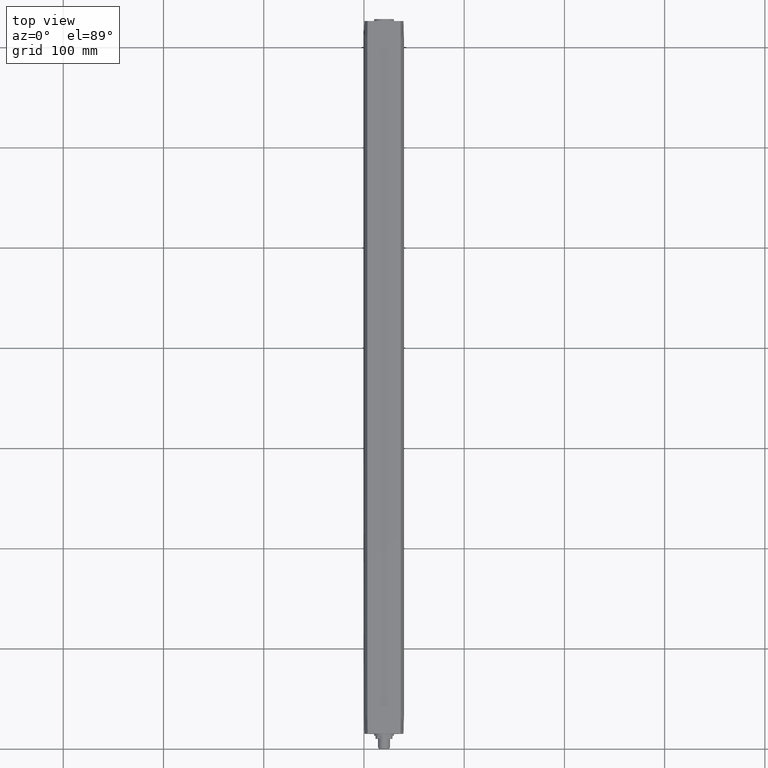
[diagram: clean part render]
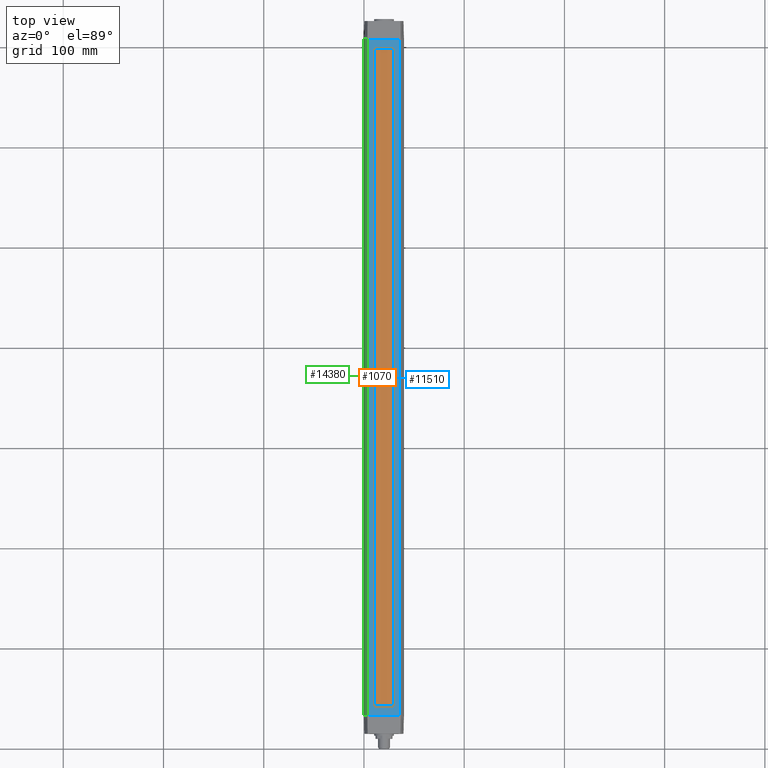
[diagram: same view with three faces highlighted in distinct colors, each labeled with its STEP entity id]
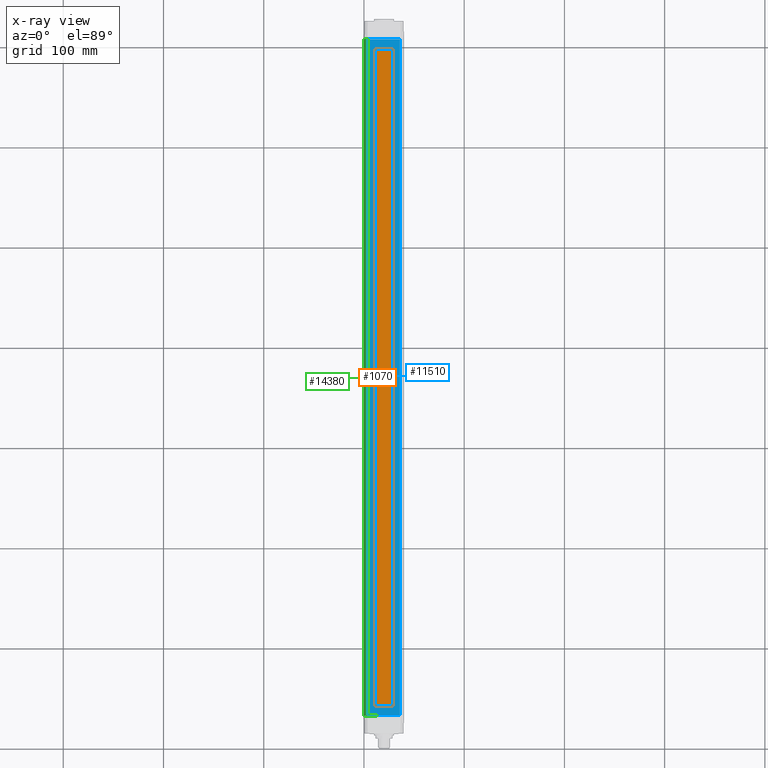
[diagram: x-ray of the same camera — body ghosted, the three highlighted faces saturated]
A machine part, top view with three faces highlighted in distinct colors.
The next image is the same camera in x-ray (body ghosted, the three faces saturated) — at least one of them is partly hidden behind the body in this view.
Their STEP definitions:

[orange] entity #1070 — the highlighted planar face has unit normal (-0, 0, 1).
#680=CARTESIAN_POINT('',(-9.97500378000003,11.,68.77500378));
#690=DIRECTION('',(-0.,1.,0.));
#700=DIRECTION('',(1.,0.,0.));
#710=AXIS2_PLACEMENT_3D('',#680,#690,#700);
#720=PLANE('',#710);
#730=CARTESIAN_POINT('',(4.9737991503207E-14,11.0000000000001,590.5));
#740=DIRECTION('',(1.,0.,0.));
#750=VECTOR('',#740,1.);
#760=LINE('',#730,#750);
#770=CARTESIAN_POINT('',(-9.49999999999994,11.,590.5));
#780=VERTEX_POINT('',#770);
#790=CARTESIAN_POINT('',(9.50000000000008,11.,590.5));
#800=VERTEX_POINT('',#790);
#810=EDGE_CURVE('',#780,#800,#760,.T.);
#820=ORIENTED_EDGE('',*,*,#810,.T.);
#830=CARTESIAN_POINT('',(-9.49999999999999,11.,0.));
#840=DIRECTION('',(0.,0.,1.));
#850=VECTOR('',#840,1.);
#860=LINE('',#830,#850);
#870=CARTESIAN_POINT('',(-9.49999999999999,11.,-65.5));
#880=VERTEX_POINT('',#870);
#890=EDGE_CURVE('',#880,#780,#860,.T.);
#900=ORIENTED_EDGE('',*,*,#890,.T.);
#910=CARTESIAN_POINT('',(0.,11.,-65.5));
#920=DIRECTION('',(-1.,0.,0.));
#930=VECTOR('',#920,1.);
#940=LINE('',#910,#930);
#950=CARTESIAN_POINT('',(9.50000000000003,11.,-65.5));
#960=VERTEX_POINT('',#950);
#970=EDGE_CURVE('',#960,#880,#940,.T.);
#980=ORIENTED_EDGE('',*,*,#970,.T.);
#990=CARTESIAN_POINT('',(9.50000000000003,11.,0.));
#1000=DIRECTION('',(0.,0.,-1.));
#1010=VECTOR('',#1000,1.);
#1020=LINE('',#990,#1010);
#1030=EDGE_CURVE('',#800,#960,#1020,.T.);
#1040=ORIENTED_EDGE('',*,*,#1030,.T.);
#1050=EDGE_LOOP('',(#1040,#980,#900,#820));
#1060=FACE_OUTER_BOUND('',#1050,.T.);
#1070=ADVANCED_FACE('',(#1060),#720,.T.);

[blue] entity #11510 — the highlighted planar face has unit normal (-0, 0, 1).
#1580=CARTESIAN_POINT('',(-9.49999999999994,11.1,590.5));
#1590=VERTEX_POINT('',#1580);
#1620=CARTESIAN_POINT('',(-9.49999999999999,11.1,0.));
#1630=DIRECTION('',(0.,0.,-1.));
#1640=VECTOR('',#1630,1.);
#1650=LINE('',#1620,#1640);
#1660=CARTESIAN_POINT('',(-9.49999999999999,11.1,-65.5));
#1670=VERTEX_POINT('',#1660);
#1680=EDGE_CURVE('',#1590,#1670,#1650,.T.);
#8390=CARTESIAN_POINT('',(0.,11.1,-74.6));
#8400=DIRECTION('',(-1.,0.,0.));
#8410=VECTOR('',#8400,1.);
#8420=LINE('',#8390,#8410);
#8430=CARTESIAN_POINT('',(15.8,11.1,-74.6));
#8440=VERTEX_POINT('',#8430);
#8450=CARTESIAN_POINT('',(-15.8,11.1,-74.6));
#8460=VERTEX_POINT('',#8450);
#8470=EDGE_CURVE('',#8440,#8460,#8420,.T.);
#10150=CARTESIAN_POINT('',(0.,11.1,-65.5));
#10160=DIRECTION('',(1.,0.,0.));
#10170=VECTOR('',#10160,1.);
#10180=LINE('',#10150,#10170);
#10190=CARTESIAN_POINT('',(9.50000000000003,11.1,-65.5));
#10200=VERTEX_POINT('',#10190);
#10210=EDGE_CURVE('',#1670,#10200,#10180,.T.);
#10860=CARTESIAN_POINT('',(9.50000000000003,11.1,0.));
#10870=DIRECTION('',(0.,0.,1.));
#10880=VECTOR('',#10870,1.);
#10890=LINE('',#10860,#10880);
#10900=CARTESIAN_POINT('',(9.50000000000008,11.1,590.5));
#10910=VERTEX_POINT('',#10900);
#10920=EDGE_CURVE('',#10200,#10910,#10890,.T.);
#11100=CARTESIAN_POINT('',(-16.59000378,11.1,78.33000378));
#11110=DIRECTION('',(-0.,1.,0.));
#11120=DIRECTION('',(1.,0.,0.));
#11130=AXIS2_PLACEMENT_3D('',#11100,#11110,#11120);
#11140=PLANE('',#11130);
#11150=ORIENTED_EDGE('',*,*,#1680,.T.);
#11160=CARTESIAN_POINT('',(4.9737991503207E-14,11.1000000000001,590.5));
#11170=DIRECTION('',(-1.,0.,0.));
#11180=VECTOR('',#11170,1.);
#11190=LINE('',#11160,#11180);
#11200=EDGE_CURVE('',#10910,#1590,#11190,.T.);
#11210=ORIENTED_EDGE('',*,*,#11200,.T.);
#11220=ORIENTED_EDGE('',*,*,#10920,.T.);
#11230=ORIENTED_EDGE('',*,*,#10210,.T.);
#11240=EDGE_LOOP('',(#11230,#11220,#11210,#11150));
#11250=FACE_BOUND('',#11240,.T.);
#11260=CARTESIAN_POINT('',(15.8,11.1,0.));
#11270=DIRECTION('',(0.,0.,1.));
#11280=VECTOR('',#11270,1.);
#11290=LINE('',#11260,#11280);
#11300=CARTESIAN_POINT('',(15.8000000000001,11.1,599.6));
#11310=VERTEX_POINT('',#11300);
#11320=EDGE_CURVE('',#8440,#11310,#11290,.T.);
#11330=ORIENTED_EDGE('',*,*,#11320,.F.);
#11340=CARTESIAN_POINT('',(4.9737991503207E-14,11.1000000000001,599.6));
#11350=DIRECTION('',(1.,0.,0.));
#11360=VECTOR('',#11350,1.);
#11370=LINE('',#11340,#11360);
#11380=CARTESIAN_POINT('',(-15.8,11.1,599.6));
#11390=VERTEX_POINT('',#11380);
#11400=EDGE_CURVE('',#11390,#11310,#11370,.T.);
#11410=ORIENTED_EDGE('',*,*,#11400,.T.);
#11420=CARTESIAN_POINT('',(-15.8,11.1,0.));
#11430=DIRECTION('',(0.,0.,1.));
#11440=VECTOR('',#11430,1.);
#11450=LINE('',#11420,#11440);
#11460=EDGE_CURVE('',#8460,#11390,#11450,.T.);
#11470=ORIENTED_EDGE('',*,*,#11460,.T.);
#11480=ORIENTED_EDGE('',*,*,#8470,.T.);
#11490=EDGE_LOOP('',(#11480,#11470,#11410,#11330));
#11500=FACE_OUTER_BOUND('',#11490,.T.);
#11510=ADVANCED_FACE('',(#11250,#11500),#11140,.T.);

[green] entity #14380 — the highlighted cylindrical surface (edge-blend (fillet) strip) has radius 20 mm, axis along (0, 1, -0).
#13380=CARTESIAN_POINT('',(6.95970545353586,-18.7500000000006,
-74.9999999999736));
#13390=VERTEX_POINT('',#13380);
#13860=CARTESIAN_POINT('',(6.95970545353858,-18.7499999999996,
600.000000000013));
#13870=VERTEX_POINT('',#13860);
#13900=CARTESIAN_POINT('',(6.95970545353759,-18.75,-75.4999999999999));
#13910=DIRECTION('',(0.,0.,-1.));
#13920=VECTOR('',#13910,1.);
#13930=LINE('',#13900,#13920);
#13940=EDGE_CURVE('',#13870,#13390,#13930,.T.);
#14060=CARTESIAN_POINT('',(-4.44089209850063E-14,-3.5527136788005E-15,
-75.4999999999999));
#14070=DIRECTION('',(0.,0.,1.));
#14080=DIRECTION('',(1.,0.,0.));
#14090=AXIS2_PLACEMENT_3D('',#14060,#14070,#14080);
#14100=CYLINDRICAL_SURFACE('',#14090,20.);
#14110=CARTESIAN_POINT('',(-5.69743333006917E-15,1.75599164270057E-15,
-74.9999999999736));
#14120=DIRECTION('',(2.67861795197786E-16,-3.53406135405247E-16,-1.));
#14130=DIRECTION('',(1.,9.46640018635614E-32,2.67861795197786E-16));
#14140=AXIS2_PLACEMENT_3D('',#14110,#14120,#14130);
#14150=CIRCLE('',#14140,20.0000000000003);
#14160=CARTESIAN_POINT('',(16.5698521417659,11.2000000000006,
-74.9999999999736));
#14170=VERTEX_POINT('',#14160);
#14180=EDGE_CURVE('',#14170,#13390,#14150,.T.);
#14190=ORIENTED_EDGE('',*,*,#14180,.F.);
#14200=ORIENTED_EDGE('',*,*,#13940,.T.);
#14210=CARTESIAN_POINT('',(-4.2595636767099E-15,-5.55974378316755E-14,
600.000000000027));
#14220=DIRECTION('',(1.23496678478392E-15,3.81502863814771E-15,1.));
#14230=DIRECTION('',(1.,-4.71143365111188E-30,-1.23496678478392E-15));
#14240=AXIS2_PLACEMENT_3D('',#14210,#14220,#14230);
#14250=CIRCLE('',#14240,19.9999999999997);
#14260=CARTESIAN_POINT('',(16.5698521417664,11.2,600.));
#14270=VERTEX_POINT('',#14260);
#14280=EDGE_CURVE('',#13870,#14270,#14250,.T.);
#14290=ORIENTED_EDGE('',*,*,#14280,.F.);
#14300=CARTESIAN_POINT('',(16.5698521417664,11.2,-75.4999999999999));
#14310=DIRECTION('',(0.,0.,1.));
#14320=VECTOR('',#14310,1.);
#14330=LINE('',#14300,#14320);
#14340=EDGE_CURVE('',#14170,#14270,#14330,.T.);
#14350=ORIENTED_EDGE('',*,*,#14340,.T.);
#14360=EDGE_LOOP('',(#14350,#14290,#14200,#14190));
#14370=FACE_OUTER_BOUND('',#14360,.T.);
#14380=ADVANCED_FACE('',(#14370),#14100,.T.);